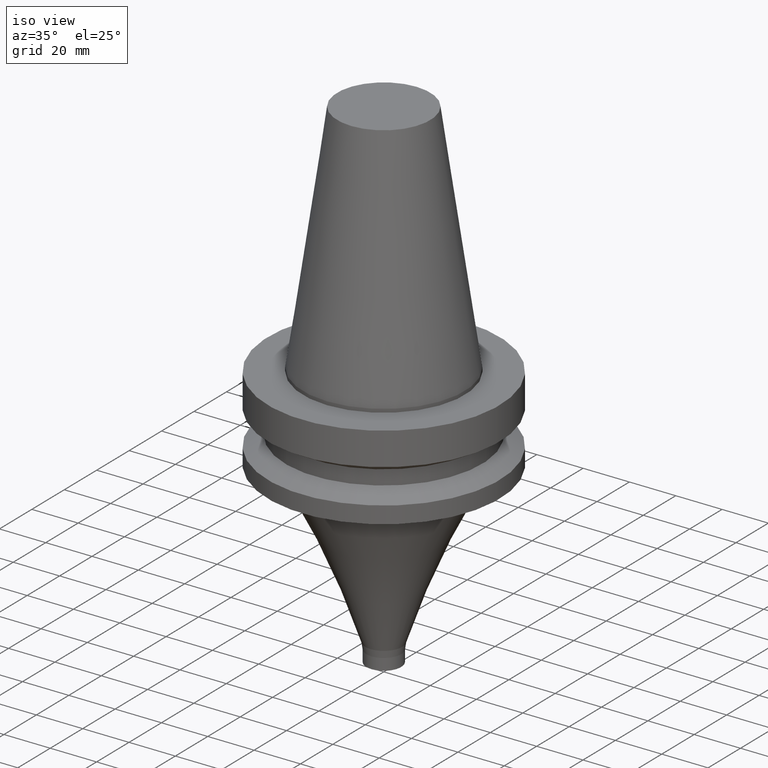
[diagram: clean part render]
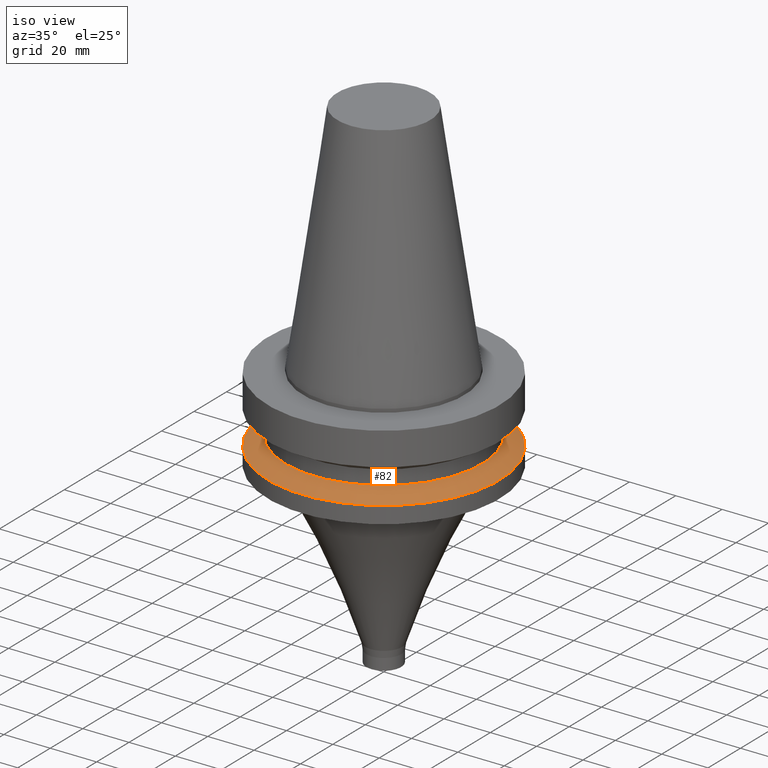
[diagram: same view with one face highlighted and labeled with its STEP entity id]
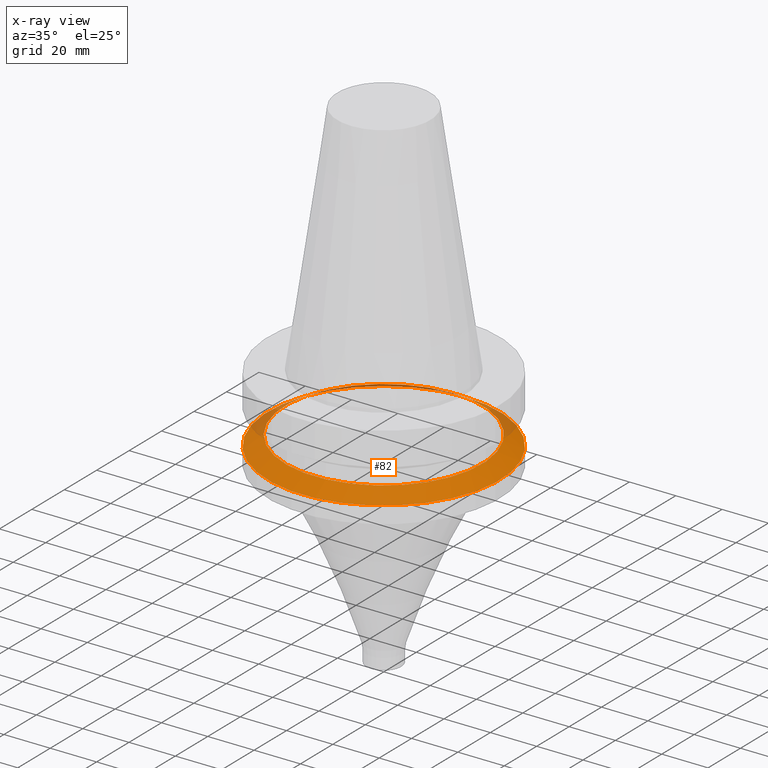
[diagram: x-ray of the same camera — body ghosted, the highlighted face saturated]
A machine part, iso view. The second image highlights one B-rep face of the part: STEP entity #82.
The next image is the same camera in x-ray: the body ghosted, the highlighted face saturated — about 12% of this face is hidden behind the body in this view.
In plain terms, the highlighted conical surface has half-angle 60 deg.
Its self-contained STEP definition (entity closure, byte-faithful):
#82=ADVANCED_FACE('',(#111,#112),#113,.T.);
#111=FACE_BOUND('',#154,.T.);
#112=FACE_BOUND('',#155,.T.);
#113=CONICAL_SURFACE('',#156,46.25,1.04719755119658);
#154=EDGE_LOOP('',(#211));
#155=EDGE_LOOP('',(#212));
#156=AXIS2_PLACEMENT_3D('',#213,#214,#215);
#211=ORIENTED_EDGE('',*,*,#257,.F.);
#212=ORIENTED_EDGE('',*,*,#256,.T.);
#213=CARTESIAN_POINT('',(1.74726093185056E-015,-2.49276262876823E-014,-28.5349364905386));
#214=DIRECTION('',(6.12323399573677E-017,4.47418976075613E-016,-1.0));
#215=DIRECTION('',(-3.22236635772083E-032,1.0,4.47418976075613E-016));
#256=EDGE_CURVE('',#276,#276,#277,.T.);
#257=EDGE_CURVE('',#278,#278,#279,.T.);
#276=VERTEX_POINT('',#304);
#277=CIRCLE('',#305,49.9999999999999);
#278=VERTEX_POINT('',#306);
#279=CIRCLE('',#307,42.5000000000001);
#304=CARTESIAN_POINT('',(1.87983283669117E-015,49.9999999999999,-30.6999999999997));
#305=AXIS2_PLACEMENT_3D('',#338,#339,#340);
#306=CARTESIAN_POINT('',(1.61468902700994E-015,42.5000000000001,-26.3698729810775));
#307=AXIS2_PLACEMENT_3D('',#341,#342,#343);
#338=CARTESIAN_POINT('',(1.87983283669117E-015,-2.39589357891405E-014,-30.6999999999997));
#339=DIRECTION('',(-6.12323399573677E-017,-4.47418976075613E-016,1.0));
#340=DIRECTION('',(-3.22236635772083E-032,1.0,4.47418976075613E-016));
#341=CARTESIAN_POINT('',(1.61468902700994E-015,-2.58963167862241E-014,-26.3698729810775));
#342=DIRECTION('',(-6.12323399573677E-017,-4.47418976075613E-016,1.0));
#343=DIRECTION('',(-3.22236635772083E-032,1.0,4.47418976075613E-016));